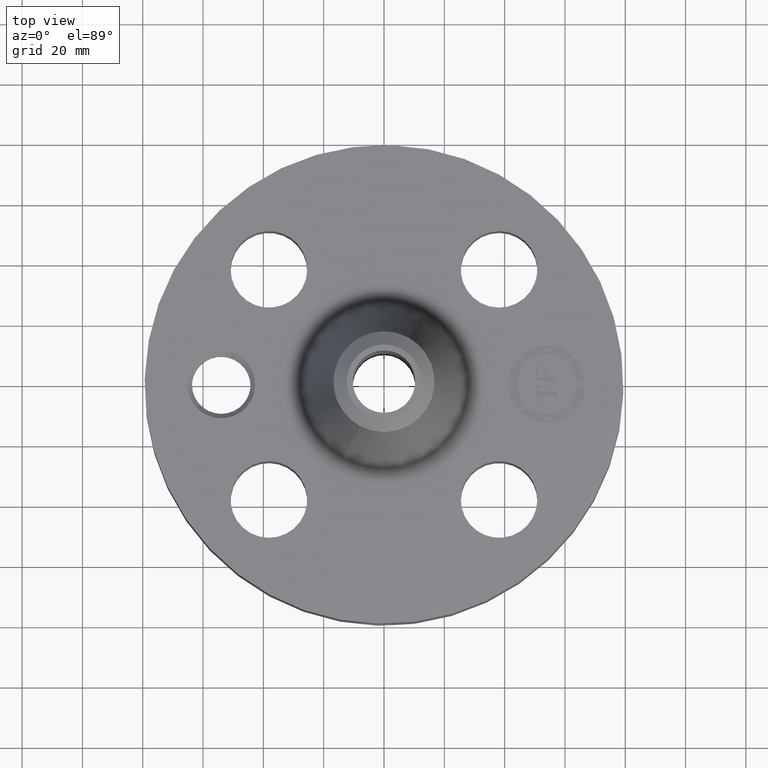
[diagram: clean part render]
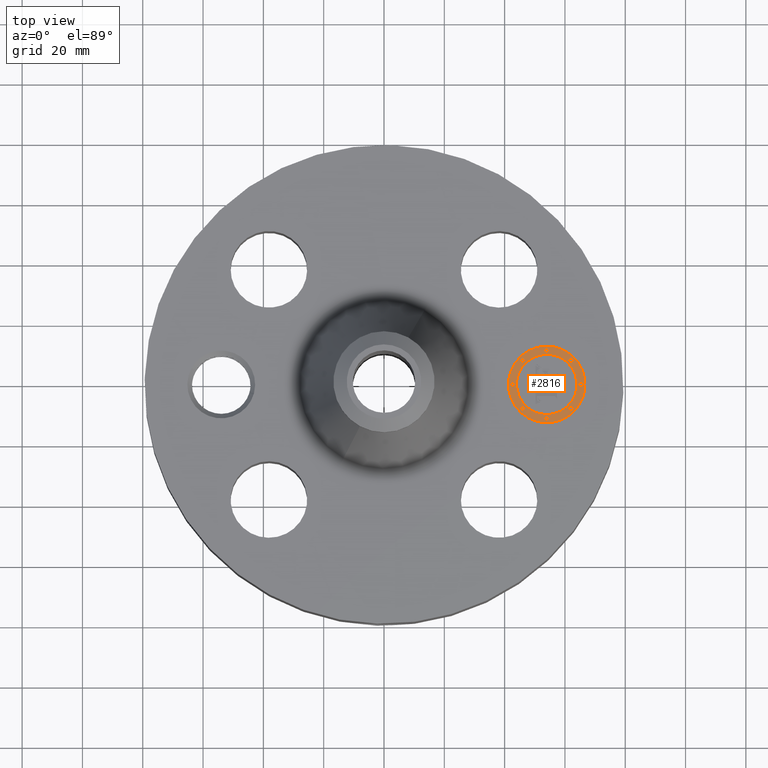
[diagram: same view with one face highlighted and labeled with its STEP entity id]
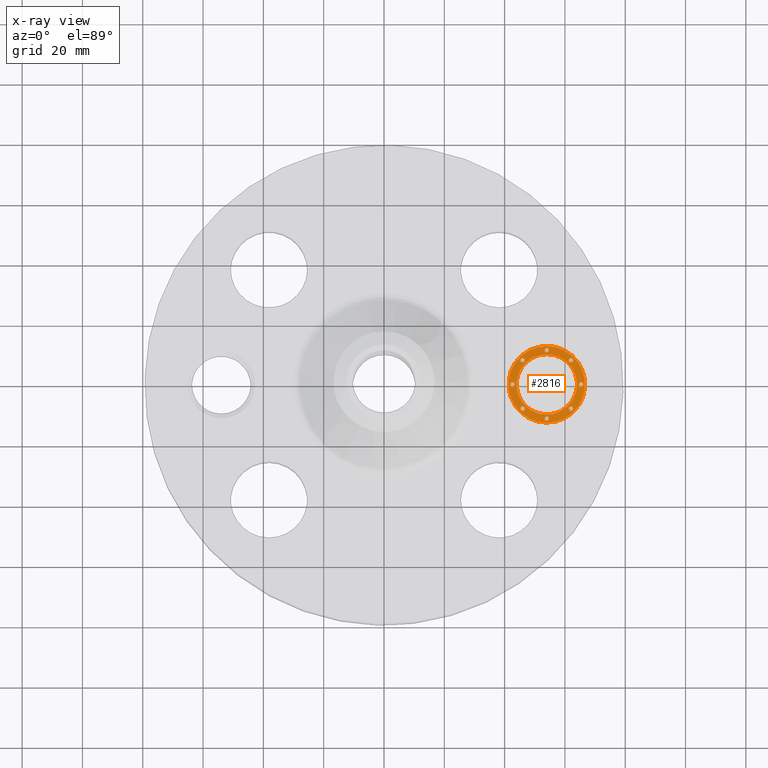
[diagram: x-ray of the same camera — body ghosted, the highlighted face saturated]
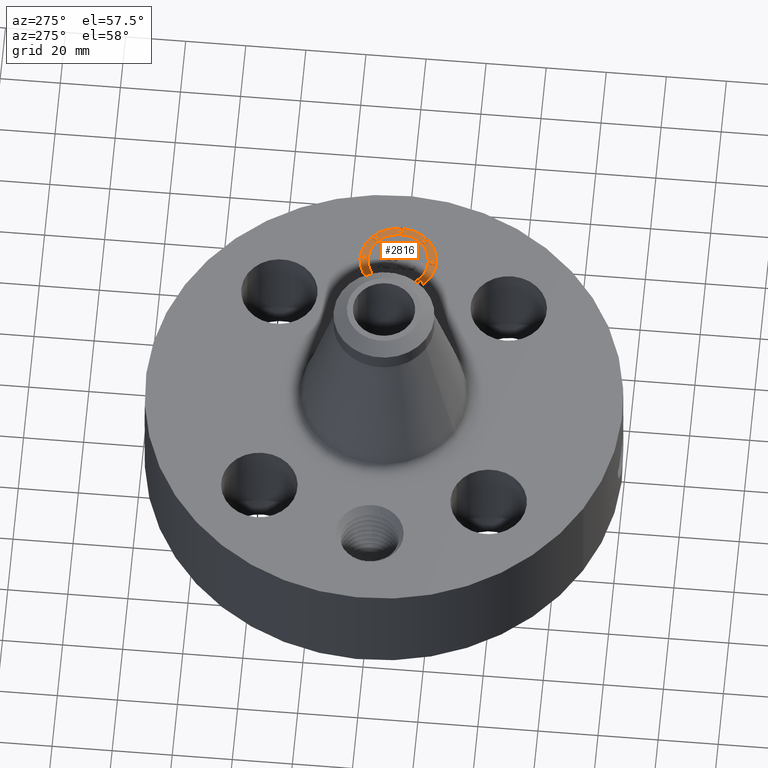
[diagram: same view with one face highlighted and labeled with its STEP entity id]
A machine part, top view. The second image highlights one B-rep face of the part: STEP entity #2816.
The next image is the same camera in x-ray: the body ghosted, the highlighted face saturated — about 0% of this face is hidden behind the body in this view.
A second angle (auxiliary view) of the same face is appended — the face is thin or edge-on in the first view.
In plain terms, the highlighted planar face has unit normal (0, 0, 1).
Its self-contained STEP definition (entity closure, byte-faithful):
#1975=AXIS2_PLACEMENT_3D('Circle Axis2P3D',#1973,#1974,$) ;
#2002=AXIS2_PLACEMENT_3D('Circle Axis2P3D',#2000,#2001,$) ;
#2648=AXIS2_PLACEMENT_3D('Plane Axis2P3D',#2645,#2646,#2647) ;
#2656=AXIS2_PLACEMENT_3D('Circle Axis2P3D',#2654,#2655,$) ;
#2665=AXIS2_PLACEMENT_3D('Circle Axis2P3D',#2663,#2664,$) ;
#2674=AXIS2_PLACEMENT_3D('Circle Axis2P3D',#2672,#2673,$) ;
#2683=AXIS2_PLACEMENT_3D('Circle Axis2P3D',#2681,#2682,$) ;
#2692=AXIS2_PLACEMENT_3D('Circle Axis2P3D',#2690,#2691,$) ;
#2701=AXIS2_PLACEMENT_3D('Circle Axis2P3D',#2699,#2700,$) ;
#2710=AXIS2_PLACEMENT_3D('Circle Axis2P3D',#2708,#2709,$) ;
#2719=AXIS2_PLACEMENT_3D('Circle Axis2P3D',#2717,#2718,$) ;
#2728=AXIS2_PLACEMENT_3D('Circle Axis2P3D',#2726,#2727,$) ;
#2737=AXIS2_PLACEMENT_3D('Circle Axis2P3D',#2735,#2736,$) ;
#2746=AXIS2_PLACEMENT_3D('Circle Axis2P3D',#2744,#2745,$) ;
#2755=AXIS2_PLACEMENT_3D('Circle Axis2P3D',#2753,#2754,$) ;
#2764=AXIS2_PLACEMENT_3D('Circle Axis2P3D',#2762,#2763,$) ;
#2773=AXIS2_PLACEMENT_3D('Circle Axis2P3D',#2771,#2772,$) ;
#2782=AXIS2_PLACEMENT_3D('Circle Axis2P3D',#2780,#2781,$) ;
#2791=AXIS2_PLACEMENT_3D('Circle Axis2P3D',#2789,#2790,$) ;
#2800=AXIS2_PLACEMENT_3D('Circle Axis2P3D',#2798,#2799,$) ;
#2809=AXIS2_PLACEMENT_3D('Circle Axis2P3D',#2807,#2808,$) ;
#1970=CARTESIAN_POINT('Vertex',(2.12500000001,-0.499999995002,1.73500000001)) ;
#1973=CARTESIAN_POINT('Axis2P3D Location',(2.12500000001,-5.31982488653E-015,1.73500000001)) ;
#1977=CARTESIAN_POINT('Vertex',(2.12500000001,0.499999995002,1.73500000001)) ;
#2000=CARTESIAN_POINT('Axis2P3D Location',(2.12500000001,-5.31982488653E-015,1.73500000001)) ;
#2645=CARTESIAN_POINT('Axis2P3D Location',(0.,0.,1.73500000001)) ;
#2654=CARTESIAN_POINT('Axis2P3D Location',(2.12500000001,-5.31982488653E-015,1.73500000001)) ;
#2658=CARTESIAN_POINT('Vertex',(2.12500000001,-0.393939390002,1.73500000001)) ;
#2660=CARTESIAN_POINT('Vertex',(2.12500000001,0.393939390002,1.73500000001)) ;
#2663=CARTESIAN_POINT('Axis2P3D Location',(2.12500000001,-5.31982488653E-015,1.73500000001)) ;
#2672=CARTESIAN_POINT('Axis2P3D Location',(1.67803030751,-6.59137593995E-015,1.73500000001)) ;
#2676=CARTESIAN_POINT('Vertex',(1.67803030751,-0.0303030300001,1.73500000001)) ;
#2678=CARTESIAN_POINT('Vertex',(1.67803030751,0.0303030300001,1.73500000001)) ;
#2681=CARTESIAN_POINT('Axis2P3D Location',(1.67803030751,-6.59137593995E-015,1.73500000001)) ;
#2690=CARTESIAN_POINT('Axis2P3D Location',(2.12500000001,0.446969692502,1.73500000001)) ;
#2694=CARTESIAN_POINT('Vertex',(2.12500000001,0.416666662502,1.73500000001)) ;
#2696=CARTESIAN_POINT('Vertex',(2.12500000001,0.477272722502,1.73500000001)) ;
#2699=CARTESIAN_POINT('Axis2P3D Location',(2.12500000001,0.446969692502,1.73500000001)) ;
#2708=CARTESIAN_POINT('Axis2P3D Location',(1.80894469946,0.316055300553,1.73500000001)) ;
#2712=CARTESIAN_POINT('Vertex',(1.80894469946,0.285752270553,1.73500000001)) ;
#2714=CARTESIAN_POINT('Vertex',(1.80894469946,0.346358330553,1.73500000001)) ;
#2717=CARTESIAN_POINT('Axis2P3D Location',(1.80894469946,0.316055300553,1.73500000001)) ;
#2726=CARTESIAN_POINT('Axis2P3D Location',(2.57196969251,6.40670149507E-015,1.73500000001)) ;
#2730=CARTESIAN_POINT('Vertex',(2.57196969251,-0.0303030300001,1.73500000001)) ;
#2732=CARTESIAN_POINT('Vertex',(2.57196969251,0.0303030300001,1.73500000001)) ;
#2735=CARTESIAN_POINT('Axis2P3D Location',(2.57196969251,6.40670149507E-015,1.73500000001)) ;
#2744=CARTESIAN_POINT('Axis2P3D Location',(2.44105530056,0.316055300553,1.73500000001)) ;
#2748=CARTESIAN_POINT('Vertex',(2.44105530056,0.285752270553,1.73500000001)) ;
#2750=CARTESIAN_POINT('Vertex',(2.44105530056,0.346358330553,1.73500000001)) ;
#2753=CARTESIAN_POINT('Axis2P3D Location',(2.44105530056,0.316055300553,1.73500000001)) ;
#2762=CARTESIAN_POINT('Axis2P3D Location',(2.12500000001,-0.446969692502,1.73500000001)) ;
#2766=CARTESIAN_POINT('Vertex',(2.12500000001,-0.416666662502,1.73500000001)) ;
#2768=CARTESIAN_POINT('Vertex',(2.12500000001,-0.477272722502,1.73500000001)) ;
#2771=CARTESIAN_POINT('Axis2P3D Location',(2.12500000001,-0.446969692502,1.73500000001)) ;
#2780=CARTESIAN_POINT('Axis2P3D Location',(1.80894469946,-0.316055300553,1.73500000001)) ;
#2784=CARTESIAN_POINT('Vertex',(1.80894469946,-0.285752270553,1.73500000001)) ;
#2786=CARTESIAN_POINT('Vertex',(1.80894469946,-0.346358330553,1.73500000001)) ;
#2789=CARTESIAN_POINT('Axis2P3D Location',(1.80894469946,-0.316055300553,1.73500000001)) ;
#2798=CARTESIAN_POINT('Axis2P3D Location',(2.44105530056,-0.316055300553,1.73500000001)) ;
#2802=CARTESIAN_POINT('Vertex',(2.44105530056,-0.285752270553,1.73500000001)) ;
#2804=CARTESIAN_POINT('Vertex',(2.44105530056,-0.346358330553,1.73500000001)) ;
#2807=CARTESIAN_POINT('Axis2P3D Location',(2.44105530056,-0.316055300553,1.73500000001)) ;
#1974=DIRECTION('Axis2P3D Direction',(0.,0.,0.0393700787402)) ;
#2001=DIRECTION('Axis2P3D Direction',(0.,0.,0.0393700787402)) ;
#2646=DIRECTION('Axis2P3D Direction',(0.,0.,0.0393700787402)) ;
#2647=DIRECTION('Axis2P3D XDirection',(0.0393700787402,0.,0.)) ;
#2655=DIRECTION('Axis2P3D Direction',(0.,0.,0.0393700787402)) ;
#2664=DIRECTION('Axis2P3D Direction',(0.,0.,0.0393700787402)) ;
#2673=DIRECTION('Axis2P3D Direction',(0.,0.,0.0393700787402)) ;
#2682=DIRECTION('Axis2P3D Direction',(0.,0.,0.0393700787402)) ;
#2691=DIRECTION('Axis2P3D Direction',(0.,0.,0.0393700787402)) ;
#2700=DIRECTION('Axis2P3D Direction',(0.,0.,0.0393700787402)) ;
#2709=DIRECTION('Axis2P3D Direction',(0.,0.,0.0393700787402)) ;
#2718=DIRECTION('Axis2P3D Direction',(0.,0.,0.0393700787402)) ;
#2727=DIRECTION('Axis2P3D Direction',(0.,0.,0.0393700787402)) ;
#2736=DIRECTION('Axis2P3D Direction',(0.,0.,0.0393700787402)) ;
#2745=DIRECTION('Axis2P3D Direction',(0.,0.,0.0393700787402)) ;
#2754=DIRECTION('Axis2P3D Direction',(0.,0.,0.0393700787402)) ;
#2763=DIRECTION('Axis2P3D Direction',(0.,0.,0.0393700787402)) ;
#2772=DIRECTION('Axis2P3D Direction',(0.,0.,0.0393700787402)) ;
#2781=DIRECTION('Axis2P3D Direction',(0.,0.,0.0393700787402)) ;
#2790=DIRECTION('Axis2P3D Direction',(0.,0.,0.0393700787402)) ;
#2799=DIRECTION('Axis2P3D Direction',(0.,0.,0.0393700787402)) ;
#2808=DIRECTION('Axis2P3D Direction',(0.,0.,0.0393700787402)) ;
#2651=ORIENTED_EDGE('',*,*,#1979,.T.) ;
#2652=ORIENTED_EDGE('',*,*,#2004,.T.) ;
#2669=ORIENTED_EDGE('',*,*,#2662,.F.) ;
#2670=ORIENTED_EDGE('',*,*,#2667,.F.) ;
#2687=ORIENTED_EDGE('',*,*,#2680,.F.) ;
#2688=ORIENTED_EDGE('',*,*,#2685,.F.) ;
#2705=ORIENTED_EDGE('',*,*,#2698,.F.) ;
#2706=ORIENTED_EDGE('',*,*,#2703,.F.) ;
#2723=ORIENTED_EDGE('',*,*,#2716,.F.) ;
#2724=ORIENTED_EDGE('',*,*,#2721,.F.) ;
#2741=ORIENTED_EDGE('',*,*,#2734,.F.) ;
#2742=ORIENTED_EDGE('',*,*,#2739,.F.) ;
#2759=ORIENTED_EDGE('',*,*,#2752,.F.) ;
#2760=ORIENTED_EDGE('',*,*,#2757,.F.) ;
#2777=ORIENTED_EDGE('',*,*,#2770,.F.) ;
#2778=ORIENTED_EDGE('',*,*,#2775,.F.) ;
#2795=ORIENTED_EDGE('',*,*,#2788,.F.) ;
#2796=ORIENTED_EDGE('',*,*,#2793,.F.) ;
#2813=ORIENTED_EDGE('',*,*,#2806,.F.) ;
#2814=ORIENTED_EDGE('',*,*,#2811,.F.) ;
#2671=FACE_BOUND('',#2668,.T.) ;
#2689=FACE_BOUND('',#2686,.T.) ;
#2707=FACE_BOUND('',#2704,.T.) ;
#2725=FACE_BOUND('',#2722,.T.) ;
#2743=FACE_BOUND('',#2740,.T.) ;
#2761=FACE_BOUND('',#2758,.T.) ;
#2779=FACE_BOUND('',#2776,.T.) ;
#2797=FACE_BOUND('',#2794,.T.) ;
#2815=FACE_BOUND('',#2812,.T.) ;
#2816=ADVANCED_FACE('PartBody',(#2653,#2671,#2689,#2707,#2725,#2743,#2761,#2779,#2797,#2815),#2649,.T.) ;
#1976=CIRCLE('generated circle',#1975,0.499999995002) ;
#2003=CIRCLE('generated circle',#2002,0.499999995002) ;
#2657=CIRCLE('generated circle',#2656,0.393939390002) ;
#2666=CIRCLE('generated circle',#2665,0.393939390002) ;
#2675=CIRCLE('generated circle',#2674,0.0303030300001) ;
#2684=CIRCLE('generated circle',#2683,0.0303030300001) ;
#2693=CIRCLE('generated circle',#2692,0.0303030300001) ;
#2702=CIRCLE('generated circle',#2701,0.0303030300001) ;
#2711=CIRCLE('generated circle',#2710,0.0303030300001) ;
#2720=CIRCLE('generated circle',#2719,0.0303030300001) ;
#2729=CIRCLE('generated circle',#2728,0.0303030300001) ;
#2738=CIRCLE('generated circle',#2737,0.0303030300001) ;
#2747=CIRCLE('generated circle',#2746,0.0303030300001) ;
#2756=CIRCLE('generated circle',#2755,0.0303030300001) ;
#2765=CIRCLE('generated circle',#2764,0.0303030300001) ;
#2774=CIRCLE('generated circle',#2773,0.0303030300001) ;
#2783=CIRCLE('generated circle',#2782,0.0303030300001) ;
#2792=CIRCLE('generated circle',#2791,0.0303030300001) ;
#2801=CIRCLE('generated circle',#2800,0.0303030300001) ;
#2810=CIRCLE('generated circle',#2809,0.0303030300001) ;
#1979=EDGE_CURVE('',#1978,#1971,#1976,.T.) ;
#2004=EDGE_CURVE('',#1971,#1978,#2003,.T.) ;
#2662=EDGE_CURVE('',#2659,#2661,#2657,.T.) ;
#2667=EDGE_CURVE('',#2661,#2659,#2666,.T.) ;
#2680=EDGE_CURVE('',#2677,#2679,#2675,.T.) ;
#2685=EDGE_CURVE('',#2679,#2677,#2684,.T.) ;
#2698=EDGE_CURVE('',#2695,#2697,#2693,.T.) ;
#2703=EDGE_CURVE('',#2697,#2695,#2702,.T.) ;
#2716=EDGE_CURVE('',#2713,#2715,#2711,.T.) ;
#2721=EDGE_CURVE('',#2715,#2713,#2720,.T.) ;
#2734=EDGE_CURVE('',#2731,#2733,#2729,.T.) ;
#2739=EDGE_CURVE('',#2733,#2731,#2738,.T.) ;
#2752=EDGE_CURVE('',#2749,#2751,#2747,.T.) ;
#2757=EDGE_CURVE('',#2751,#2749,#2756,.T.) ;
#2770=EDGE_CURVE('',#2767,#2769,#2765,.T.) ;
#2775=EDGE_CURVE('',#2769,#2767,#2774,.T.) ;
#2788=EDGE_CURVE('',#2785,#2787,#2783,.T.) ;
#2793=EDGE_CURVE('',#2787,#2785,#2792,.T.) ;
#2806=EDGE_CURVE('',#2803,#2805,#2801,.T.) ;
#2811=EDGE_CURVE('',#2805,#2803,#2810,.T.) ;
#2650=EDGE_LOOP('',(#2651,#2652)) ;
#2668=EDGE_LOOP('',(#2669,#2670)) ;
#2686=EDGE_LOOP('',(#2687,#2688)) ;
#2704=EDGE_LOOP('',(#2705,#2706)) ;
#2722=EDGE_LOOP('',(#2723,#2724)) ;
#2740=EDGE_LOOP('',(#2741,#2742)) ;
#2758=EDGE_LOOP('',(#2759,#2760)) ;
#2776=EDGE_LOOP('',(#2777,#2778)) ;
#2794=EDGE_LOOP('',(#2795,#2796)) ;
#2812=EDGE_LOOP('',(#2813,#2814)) ;
#2653=FACE_OUTER_BOUND('',#2650,.T.) ;
#2649=PLANE('',#2648) ;
#1971=VERTEX_POINT('',#1970) ;
#1978=VERTEX_POINT('',#1977) ;
#2659=VERTEX_POINT('',#2658) ;
#2661=VERTEX_POINT('',#2660) ;
#2677=VERTEX_POINT('',#2676) ;
#2679=VERTEX_POINT('',#2678) ;
#2695=VERTEX_POINT('',#2694) ;
#2697=VERTEX_POINT('',#2696) ;
#2713=VERTEX_POINT('',#2712) ;
#2715=VERTEX_POINT('',#2714) ;
#2731=VERTEX_POINT('',#2730) ;
#2733=VERTEX_POINT('',#2732) ;
#2749=VERTEX_POINT('',#2748) ;
#2751=VERTEX_POINT('',#2750) ;
#2767=VERTEX_POINT('',#2766) ;
#2769=VERTEX_POINT('',#2768) ;
#2785=VERTEX_POINT('',#2784) ;
#2787=VERTEX_POINT('',#2786) ;
#2803=VERTEX_POINT('',#2802) ;
#2805=VERTEX_POINT('',#2804) ;